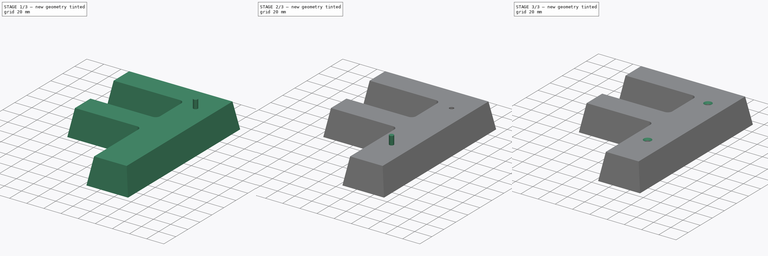
[diagram: build sequence overview — one tinted view per stage of 3, left to right]
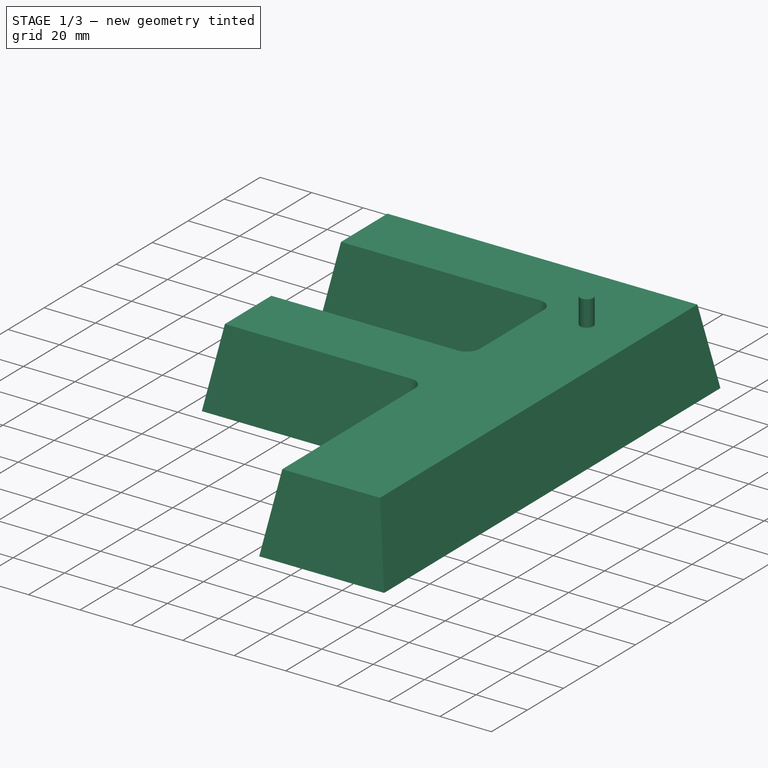
[diagram: stage 1 of 3 — iso view after this stage's code; geometry added in this stage tinted green]
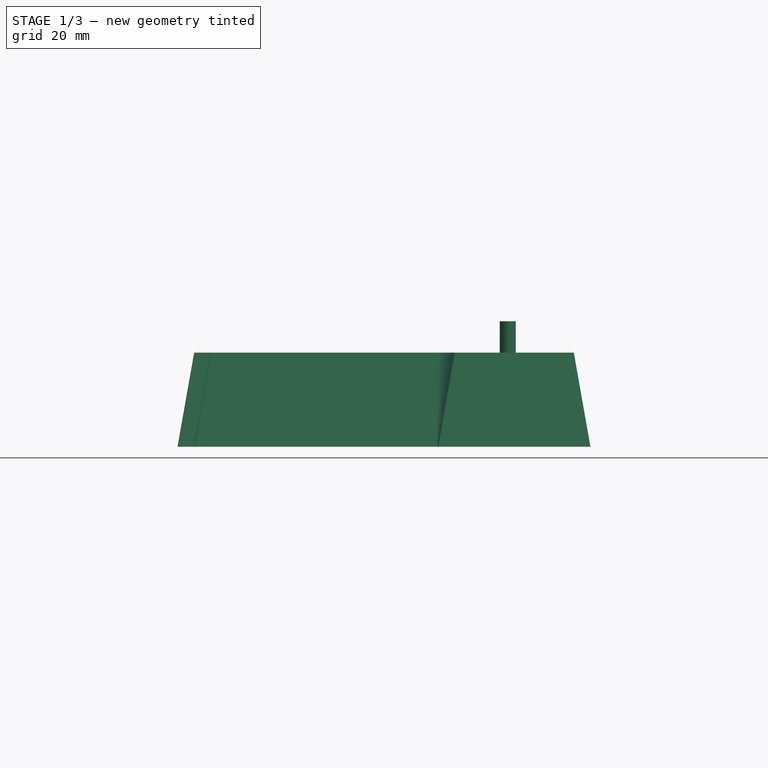
[diagram: stage 1 of 3 — front view after this stage's code; geometry added in this stage tinted green]
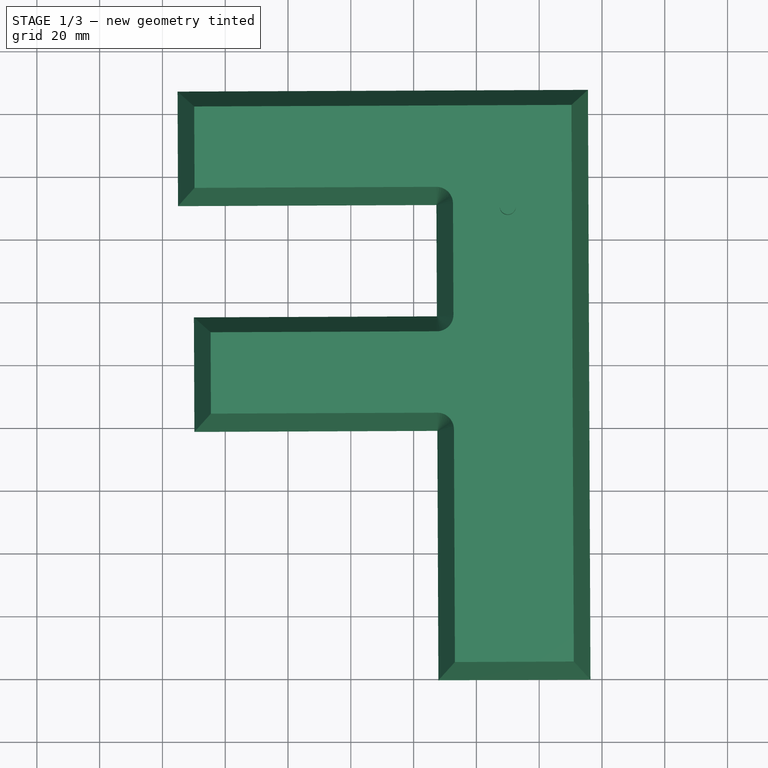
[diagram: stage 1 of 3 — top view after this stage's code; geometry added in this stage tinted green]
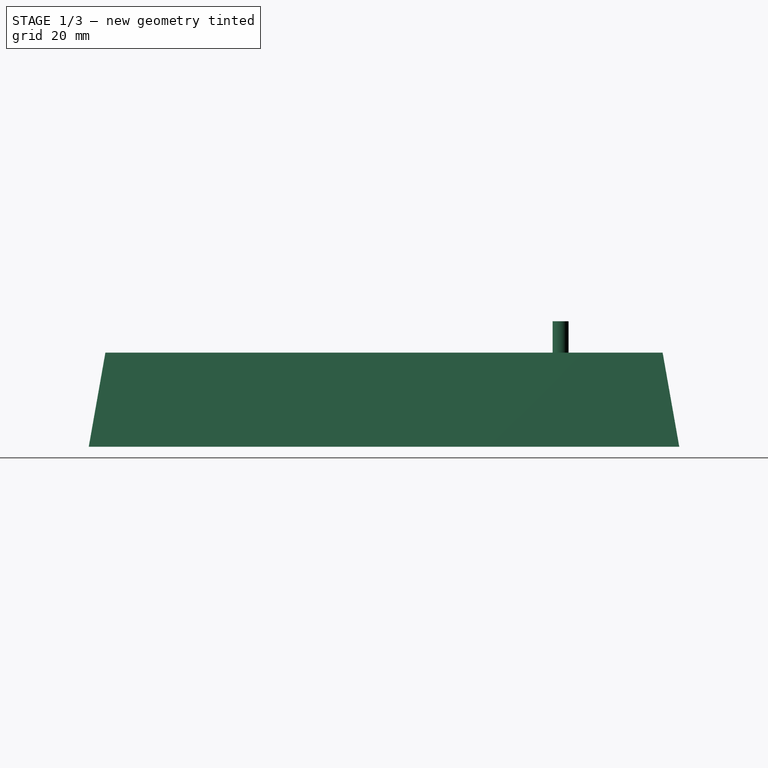
[diagram: stage 1 of 3 — right view after this stage's code; geometry added in this stage tinted green]
FCSTD DOCUMENT  (FreeCAD 0.21RUnknown)
Label: f-mirror
License: All rights reserved
LicenseURL: https://en.wikipedia.org/wiki/All_rights_reserved
objects: Part::Offset2D×2, Part::Cylinder×2, Part::Cut×2, Part::Part2DObjectPython×1, Part::Mirroring×1, Sketcher::SketchObject×1, Part::Loft×1, Part::Chamfer×1
note: 11 computed .brp shape members not serialized (recipe doc carries the construction recipe); baked Part::Feature solids carry a one-line shape summary decoded from their .brp

FEATURE [Part::Part2DObjectPython] ShapeString  # Draft 2D object (typed FeaturePython)
  FontFile = /nix/var/nix/profiles/system/sw/share/X11/fonts/DejaVuSans-Bold.ttf
  MakeFace = false
  Size = 200
  String = F
  Tracking = 0
FEATURE [Part::Mirroring] Mirror  label="ShapeString (mirrored)"
  Base = (-0.198978,93.945,-1.49012e-08)
  Normal = (0.999998,0.00211802,-1.19209e-07)
  Source = -> ShapeString
FEATURE [Sketcher::SketchObject] Sketch
  FullyConstrained = false
  Placement = pos=(0,0,-1e-15) rot=(-0.002118,0.999998,0;3.14159rad)
  sketch-geometry (10):
    g0: LineSegment StartX=23.6577 StartY=187.919 StartZ=0 EndX=154.404 EndY=187.919 EndZ=0
    g1: LineSegment StartX=23.6577 StartY=2.39753e-11 StartZ=0 EndX=23.6577 EndY=187.919 EndZ=0
    g2: LineSegment StartX=72.1057 StartY=2.39753e-11 StartZ=0 EndX=23.6577 EndY=2.39753e-11 EndZ=0
    g3: LineSegment StartX=72.1057 StartY=79.4631 StartZ=0 EndX=72.1057 EndY=2.39737e-11 EndZ=0
    g4: LineSegment StartX=149.497 StartY=79.4631 StartZ=0 EndX=72.1057 EndY=79.4631 EndZ=0
    g5: LineSegment StartX=149.497 StartY=115.973 StartZ=0 EndX=149.497 EndY=79.4631 EndZ=0
    g6: LineSegment StartX=72.1057 StartY=115.973 StartZ=0 EndX=149.497 EndY=115.973 EndZ=0
    g7: LineSegment StartX=72.1057 StartY=151.409 StartZ=0 EndX=72.1057 EndY=115.973 EndZ=0
    g8: LineSegment StartX=154.404 StartY=151.409 StartZ=0 EndX=72.1057 EndY=151.409 EndZ=0
    g9: LineSegment StartX=154.404 StartY=187.919 StartZ=0 EndX=154.404 EndY=151.409 EndZ=0
  constraints (20):
    c: Horizontal(g0)
    c: Coincident(g0,g1)
    c: Vertical(g1)
    c: Coincident(g1,g2)
    c: Horizontal(g2)
    c: Coincident(g2,g3)
    c: Vertical(g3)
    c: Coincident(g3,g4)
    c: Horizontal(g4)
    c: Coincident(g4,g5)
    c: Vertical(g5)
    c: Coincident(g5,g6)
    c: Horizontal(g6)
    c: Coincident(g6,g7)
    c: Vertical(g7)
    c: Coincident(g7,g8)
    c: Horizontal(g8)
    c: Coincident(g8,g9)
    c: Vertical(g9)
    c: Coincident(g9,g0)
FEATURE [Part::Offset2D] Offset2D
  Fill = false
  Intersection = false
  Join = 0
  Mode = 1
  SelfIntersection = false
  Source = -> Sketch
  Value = -0.01
FEATURE [Part::Offset2D] Offset2D001
  Fill = false
  Intersection = false
  Join = 0
  Mode = 1
  Placement = pos=(0,0,30) rot=(0,0,1;0rad)
  SelfIntersection = false
  Source = -> Sketch
  Value = -5.28981
  expr: Value = -.Placement.Base.z * tan(10)
FEATURE [Part::Loft] Loft
  Closed = false
  MaxDegree = 5
  Ruled = false
  Sections = -> [Offset2D001,Offset2D]
  Solid = true
FEATURE [Part::Cylinder] Cylinder
  Angle = 360
  AttacherType = Attacher::AttachEngine3D
  FirstAngle = 0
  Height = 40
  Placement = pos=(-50,150,0) rot=(0,0,1;0rad)
  Radius = 2.55
  SecondAngle = 0
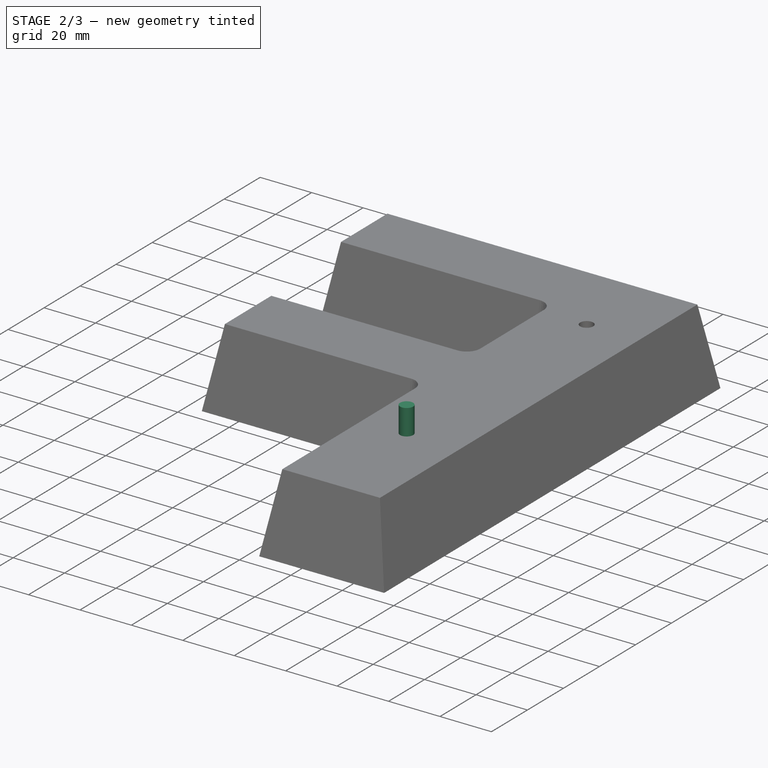
[diagram: stage 2 of 3 — iso view after this stage's code; geometry added in this stage tinted green]
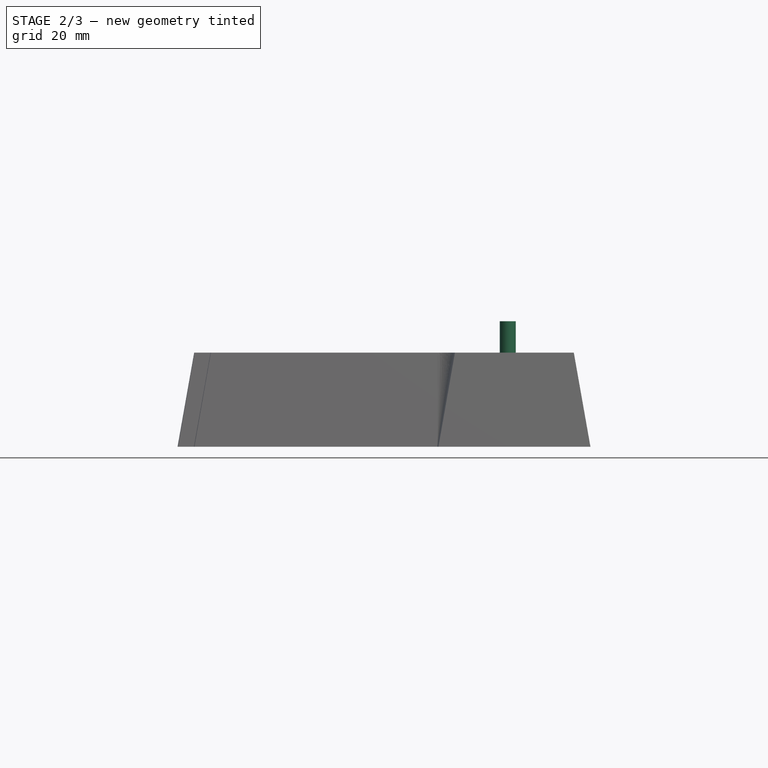
[diagram: stage 2 of 3 — front view after this stage's code; geometry added in this stage tinted green]
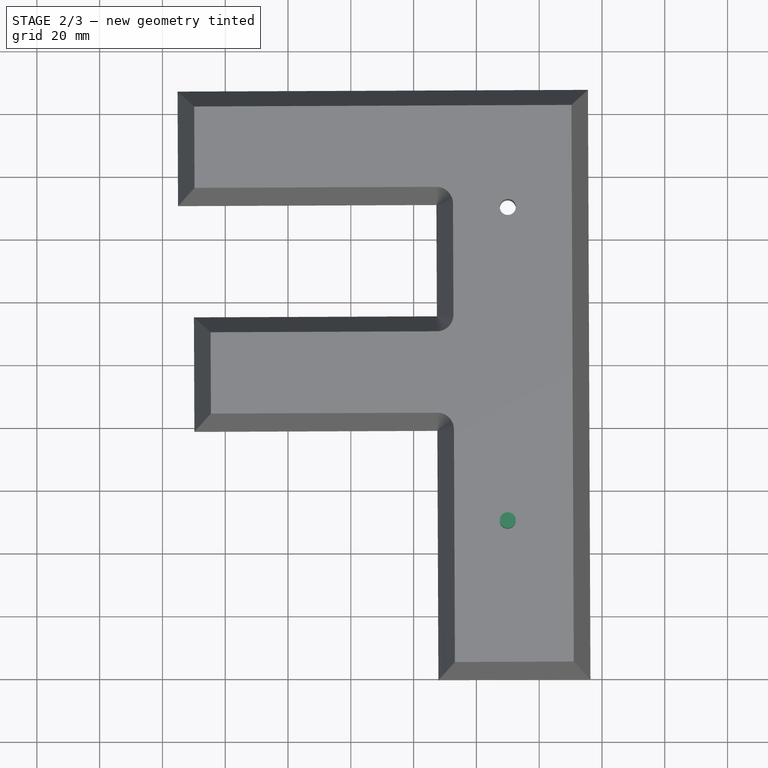
[diagram: stage 2 of 3 — top view after this stage's code; geometry added in this stage tinted green]
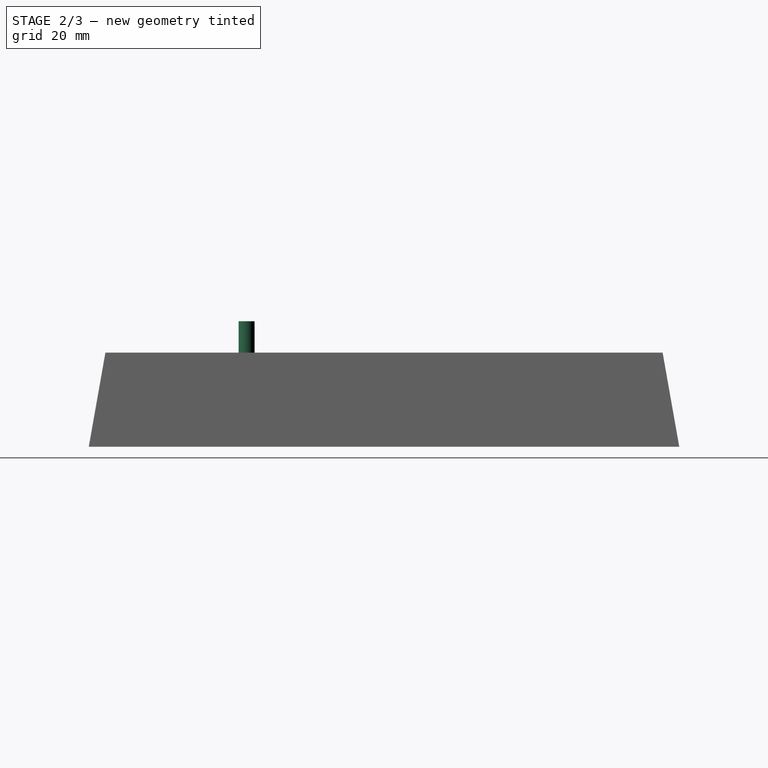
[diagram: stage 2 of 3 — right view after this stage's code; geometry added in this stage tinted green]
FEATURE [Part::Cylinder] Cylinder001
  Angle = 360
  AttacherType = Attacher::AttachEngine3D
  FirstAngle = 0
  Height = 40
  Placement = pos=(-50,50,0) rot=(0,0,1;0rad)
  Radius = 2.55
  SecondAngle = 0
FEATURE [Part::Cut] Cut
  Base = -> Loft
  Tool = -> Cylinder
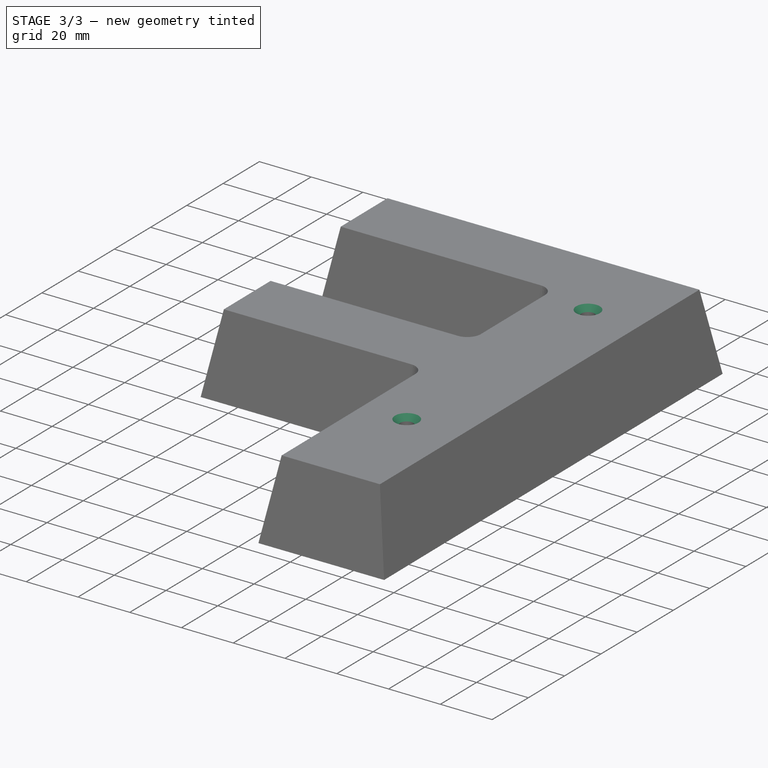
[diagram: stage 3 of 3 — iso view after this stage's code; geometry added in this stage tinted green]
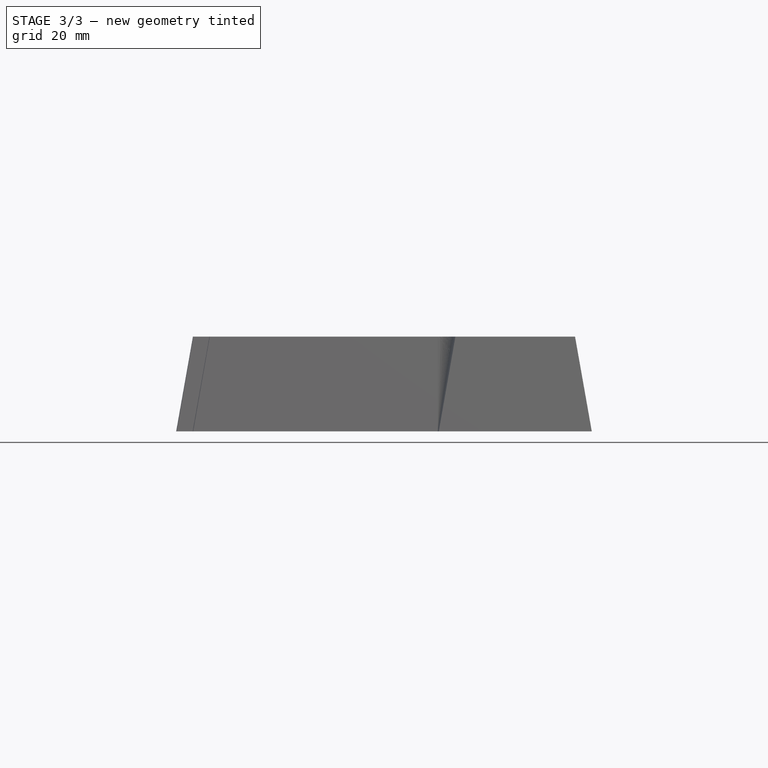
[diagram: stage 3 of 3 — front view after this stage's code; geometry added in this stage tinted green]
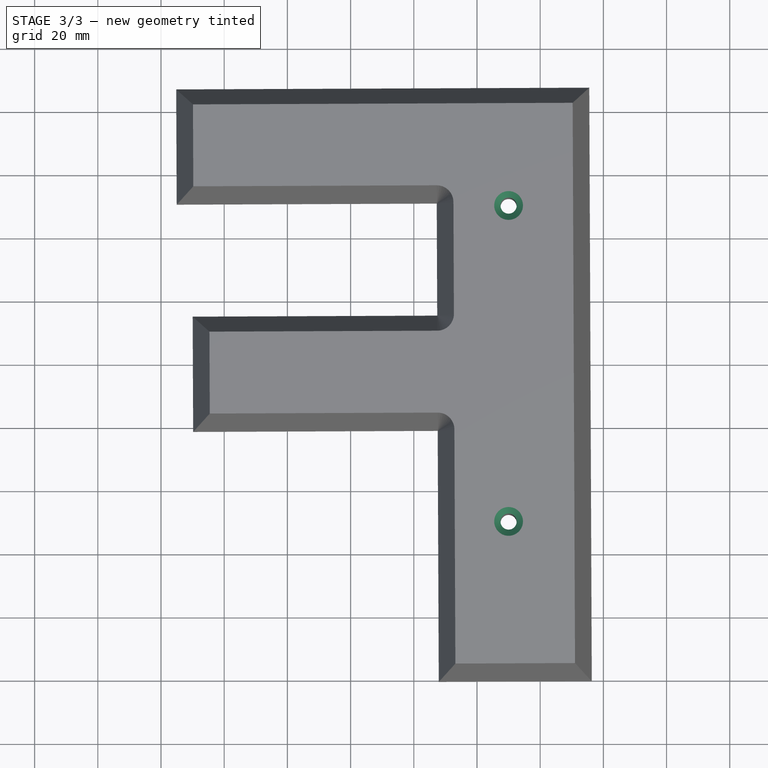
[diagram: stage 3 of 3 — top view after this stage's code; geometry added in this stage tinted green]
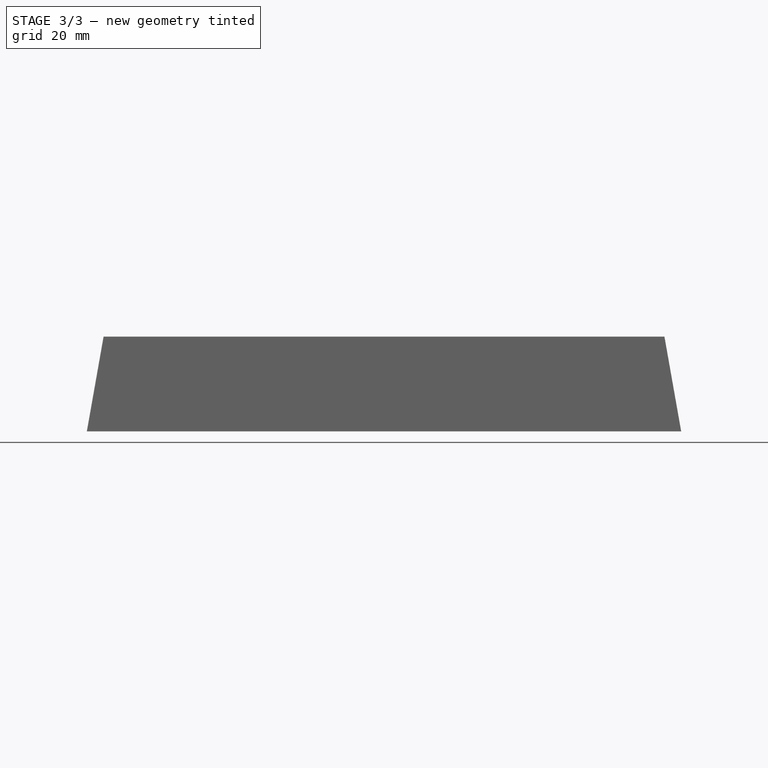
[diagram: stage 3 of 3 — right view after this stage's code; geometry added in this stage tinted green]
FEATURE [Part::Cut] Cut001
  Base = -> Cut
  Tool = -> Cylinder001
FEATURE [Part::Chamfer] Chamfer
  Base = -> Cut001
  Edges = 2 edges r=2: [Edge17,Edge18]
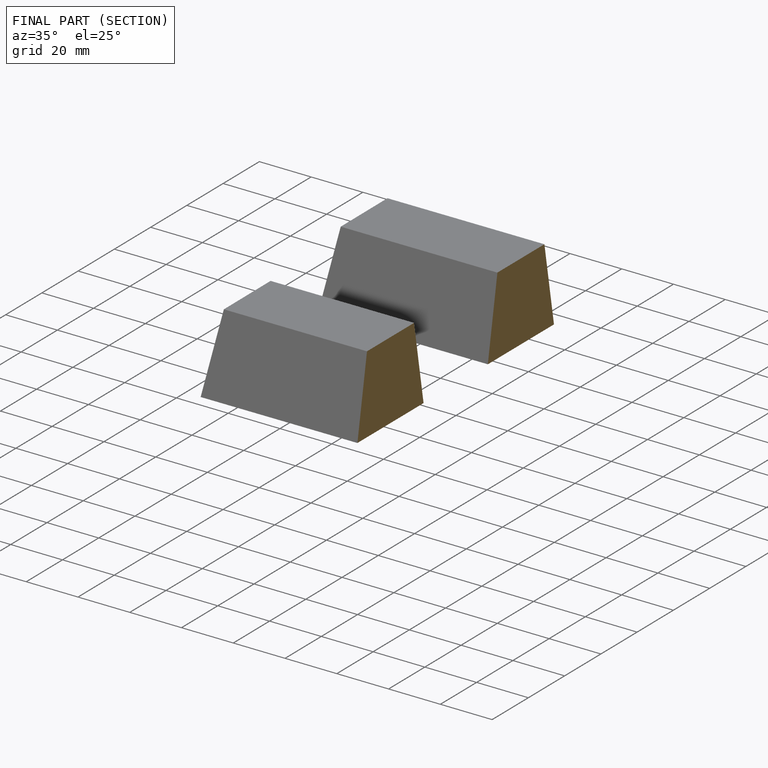
[diagram: finished part — half-section view (interior)]
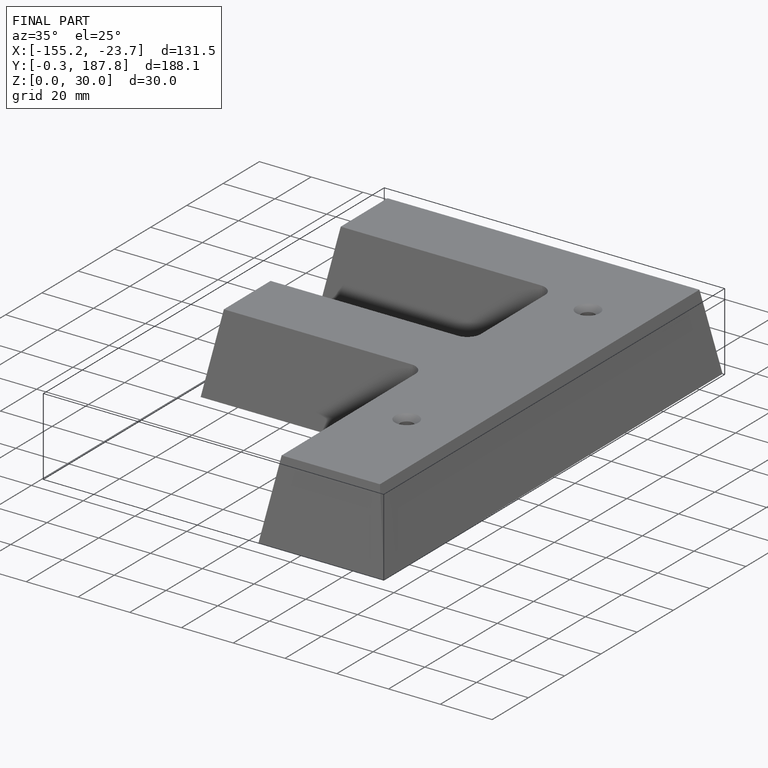
[diagram: finished part — iso view with bounding-box wireframe]
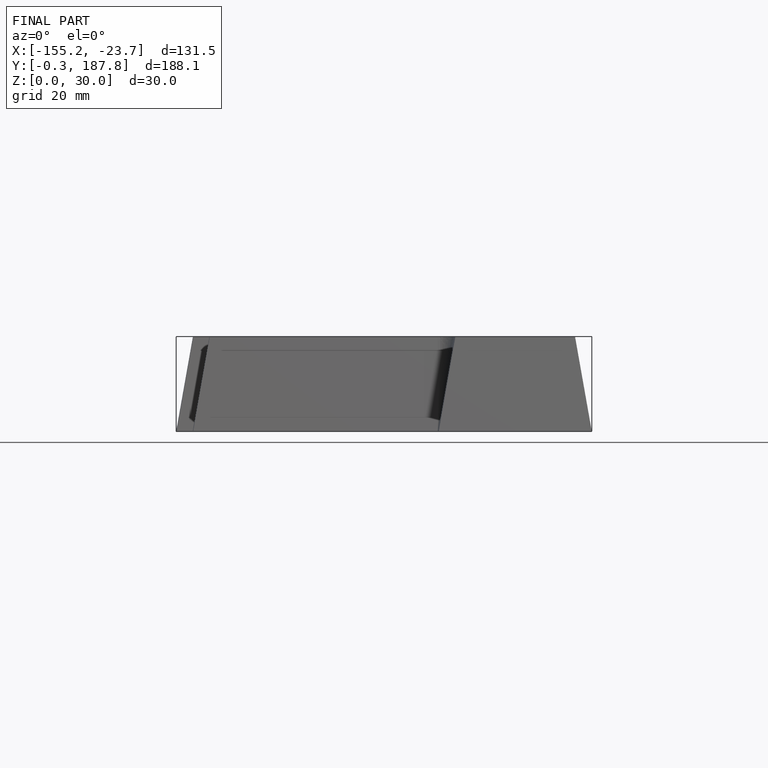
[diagram: finished part — front view with bounding-box wireframe]
